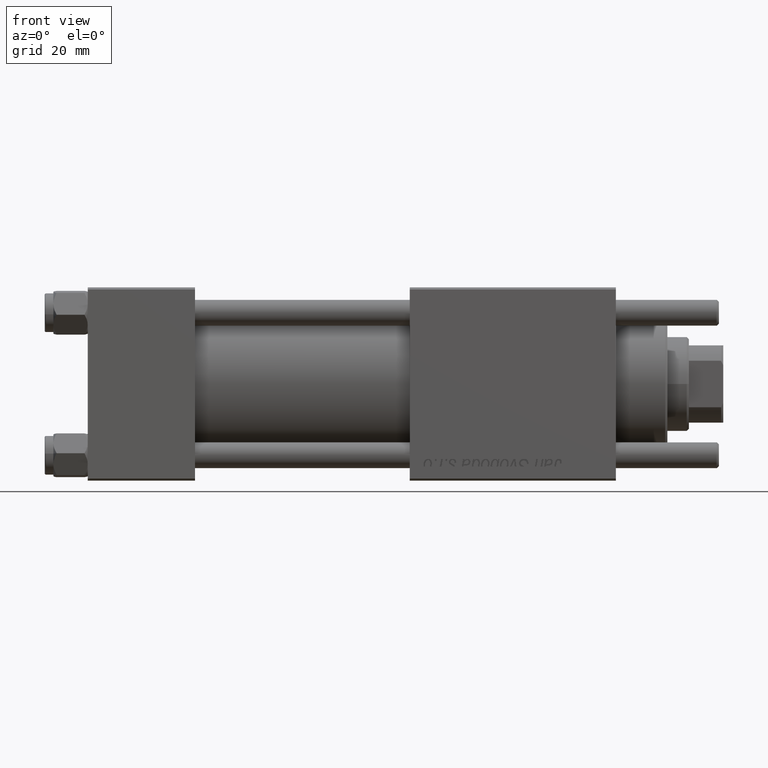
[diagram: clean part render]
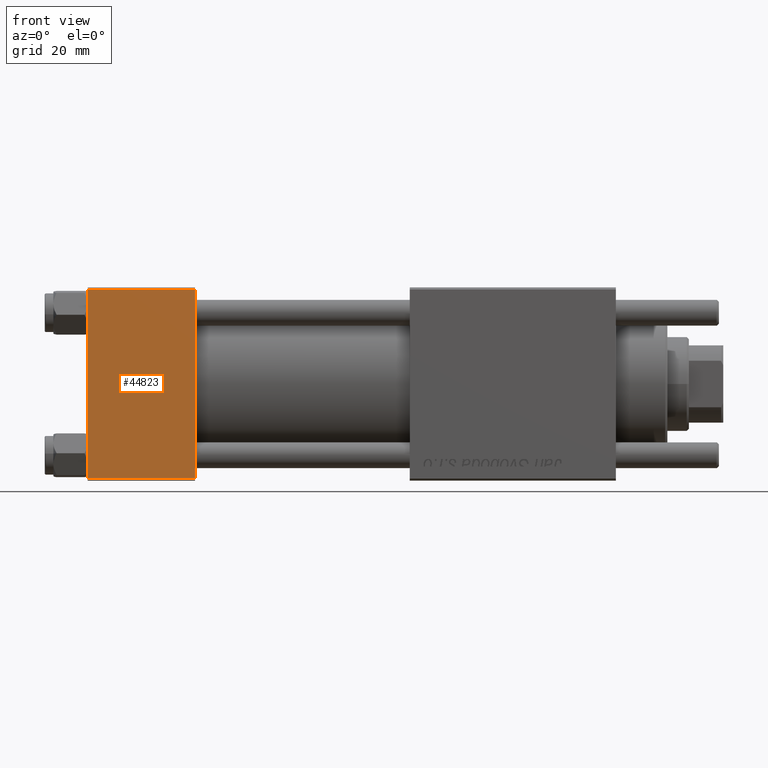
[diagram: same view with one face highlighted and labeled with its STEP entity id]
A machine part, front view. The second image highlights one B-rep face of the part: STEP entity #44823.
In plain terms, the highlighted planar face has unit normal (0, 1, 0).
Its self-contained STEP definition (entity closure, byte-faithful):
#1564 = VERTEX_POINT ( 'NONE', #52497 ) ;
#5380 = CARTESIAN_POINT ( 'NONE',  ( 0.000000000000000000, -22.50000000000000000, -21.99999999999997158 ) ) ;
#5753 = DIRECTION ( 'NONE',  ( -1.000000000000000000, 0.000000000000000000, 0.000000000000000000 ) ) ;
#7551 = EDGE_CURVE ( 'NONE', #50651, #1564, #14097, .T. ) ;
#10530 = VERTEX_POINT ( 'NONE', #10896 ) ;
#10850 = DIRECTION ( 'NONE',  ( 0.000000000000000000, -0.000000000000000000, 1.000000000000000000 ) ) ;
#10896 = CARTESIAN_POINT ( 'NONE',  ( 25.00000000000000000, -22.50000000000000000, -21.99999999999997158 ) ) ;
#11807 = VECTOR ( 'NONE', #27804, 1000.000000000000000 ) ;
#14097 = LINE ( 'NONE', #37086, #41185 ) ;
#14880 = PLANE ( 'NONE',  #52650 ) ;
#15027 = CARTESIAN_POINT ( 'NONE',  ( 25.00000000000000000, -22.50000000000000000, 22.00000000000000000 ) ) ;
#16337 = VERTEX_POINT ( 'NONE', #5380 ) ;
#19365 = EDGE_CURVE ( 'NONE', #50651, #10530, #37839, .T. ) ;
#23248 = DIRECTION ( 'NONE',  ( -0.000000000000000000, 1.000000000000000000, 0.000000000000000000 ) ) ;
#24216 = EDGE_LOOP ( 'NONE', ( #32042, #45464, #43903, #52928 ) ) ;
#27555 = CARTESIAN_POINT ( 'NONE',  ( 25.00000000000000000, -22.50000000000000000, 22.50000000000000000 ) ) ;
#27804 = DIRECTION ( 'NONE',  ( 0.000000000000000000, 0.000000000000000000, -1.000000000000000000 ) ) ;
#28424 = DIRECTION ( 'NONE',  ( 0.000000000000000000, 0.000000000000000000, -1.000000000000000000 ) ) ;
#29734 = DIRECTION ( 'NONE',  ( 1.000000000000000000, 0.000000000000000000, 0.000000000000000000 ) ) ;
#30036 = EDGE_CURVE ( 'NONE', #16337, #10530, #42947, .T. ) ;
#32042 = ORIENTED_EDGE ( 'NONE', *, *, #40531, .T. ) ;
#32668 = CARTESIAN_POINT ( 'NONE',  ( 25.00000000000000000, -22.50000000000000000, 22.50000000000000000 ) ) ;
#37055 = VECTOR ( 'NONE', #28424, 1000.000000000000000 ) ;
#37086 = CARTESIAN_POINT ( 'NONE',  ( 25.00000000000000000, -22.50000000000000000, 22.00000000000000000 ) ) ;
#37839 = LINE ( 'NONE', #32668, #11807 ) ;
#38594 = VECTOR ( 'NONE', #29734, 1000.000000000000000 ) ;
#40531 = EDGE_CURVE ( 'NONE', #1564, #16337, #51110, .T. ) ;
#41185 = VECTOR ( 'NONE', #5753, 1000.000000000000000 ) ;
#41611 = FACE_OUTER_BOUND ( 'NONE', #24216, .T. ) ;
#42947 = LINE ( 'NONE', #52448, #38594 ) ;
#43903 = ORIENTED_EDGE ( 'NONE', *, *, #19365, .F. ) ;
#44823 = ADVANCED_FACE ( 'NONE', ( #41611 ), #14880, .F. ) ;
#45464 = ORIENTED_EDGE ( 'NONE', *, *, #30036, .T. ) ;
#49996 = CARTESIAN_POINT ( 'NONE',  ( 0.000000000000000000, -22.50000000000000000, 22.50000000000000000 ) ) ;
#50651 = VERTEX_POINT ( 'NONE', #15027 ) ;
#51110 = LINE ( 'NONE', #49996, #37055 ) ;
#52448 = CARTESIAN_POINT ( 'NONE',  ( 25.00000000000000000, -22.50000000000000000, -21.99999999999998579 ) ) ;
#52497 = CARTESIAN_POINT ( 'NONE',  ( 0.000000000000000000, -22.50000000000000000, 22.00000000000000000 ) ) ;
#52650 = AXIS2_PLACEMENT_3D ( 'NONE', #27555, #23248, #10850 ) ;
#52928 = ORIENTED_EDGE ( 'NONE', *, *, #7551, .T. ) ;